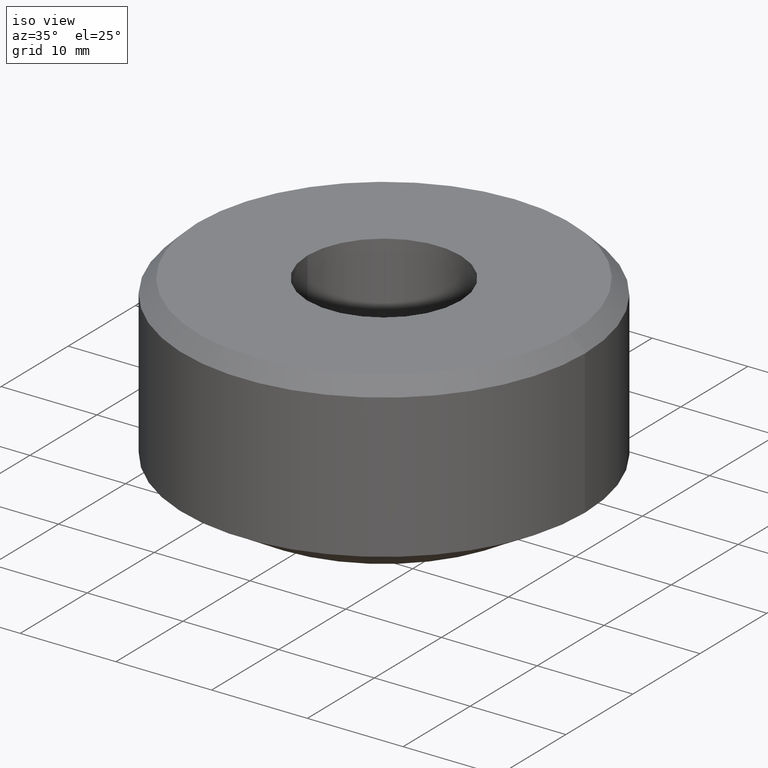
[diagram: clean part render]
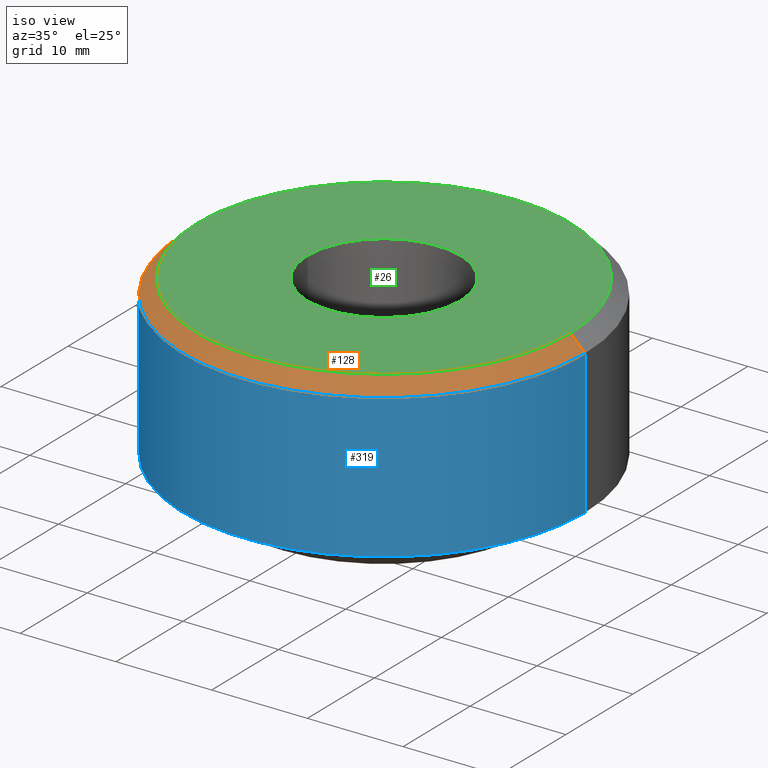
[diagram: same view with three faces highlighted in distinct colors, each labeled with its STEP entity id]
A machine part, iso view with three faces highlighted in distinct colors.
Their STEP definitions:

[orange] entity #128 — the highlighted conical surface has half-angle 45 deg.
#2 = VECTOR ( 'NONE', #183, 1000.000000000000100 ) ;
#14 = EDGE_CURVE ( 'NONE', #333, #338, #61, .T. ) ;
#15 = CARTESIAN_POINT ( 'NONE',  ( -19.50000000000000000, 0.0000000000000000000, 9.999999999999994700 ) ) ;
#16 = VERTEX_POINT ( 'NONE', #157 ) ;
#19 = CARTESIAN_POINT ( 'NONE',  ( 0.0000000000000000000, 0.0000000000000000000, 8.500000000000007100 ) ) ;
#49 = DIRECTION ( 'NONE',  ( 0.0000000000000000000, 0.0000000000000000000, -1.000000000000000000 ) ) ;
#53 = ORIENTED_EDGE ( 'NONE', *, *, #95, .T. ) ;
#61 = LINE ( 'NONE', #318, #2 ) ;
#65 = VERTEX_POINT ( 'NONE', #15 ) ;
#85 = ORIENTED_EDGE ( 'NONE', *, *, #14, .F. ) ;
#88 = CARTESIAN_POINT ( 'NONE',  ( 19.50000000000000000, 2.479909768273390300E-015, 9.999999999999994700 ) ) ;
#93 = CARTESIAN_POINT ( 'NONE',  ( 0.0000000000000000000, 0.0000000000000000000, 9.999999999999994700 ) ) ;
#95 = EDGE_CURVE ( 'NONE', #16, #338, #152, .T. ) ;
#108 = AXIS2_PLACEMENT_3D ( 'NONE', #162, #49, #187 ) ;
#125 = EDGE_LOOP ( 'NONE', ( #85, #139, #288, #53 ) ) ;
#128 = ADVANCED_FACE ( 'NONE', ( #249 ), #228, .T. ) ;
#134 = DIRECTION ( 'NONE',  ( 1.000000000000000000, 0.0000000000000000000, 0.0000000000000000000 ) ) ;
#139 = ORIENTED_EDGE ( 'NONE', *, *, #259, .F. ) ;
#149 = CARTESIAN_POINT ( 'NONE',  ( -21.00000000000000000, 0.0000000000000000000, 8.500000000000007100 ) ) ;
#152 = CIRCLE ( 'NONE', #274, 21.00000000000000000 ) ;
#157 = CARTESIAN_POINT ( 'NONE',  ( -21.00000000000000000, 0.0000000000000000000, 8.500000000000007100 ) ) ;
#162 = CARTESIAN_POINT ( 'NONE',  ( 0.0000000000000000000, 0.0000000000000000000, 8.500000000000007100 ) ) ;
#170 = LINE ( 'NONE', #149, #242 ) ;
#176 = EDGE_CURVE ( 'NONE', #65, #16, #170, .T. ) ;
#183 = DIRECTION ( 'NONE',  ( 0.7071067811865507900, 8.659560562354972300E-017, -0.7071067811865441300 ) ) ;
#187 = DIRECTION ( 'NONE',  ( -1.000000000000000000, 0.0000000000000000000, 0.0000000000000000000 ) ) ;
#203 = DIRECTION ( 'NONE',  ( -0.0000000000000000000, -0.0000000000000000000, 1.000000000000000000 ) ) ;
#214 = DIRECTION ( 'NONE',  ( -0.0000000000000000000, -0.0000000000000000000, 1.000000000000000000 ) ) ;
#228 = CONICAL_SURFACE ( 'NONE', #108, 21.00000000000000000, 0.7853981633974529400 ) ;
#242 = VECTOR ( 'NONE', #334, 1000.000000000000100 ) ;
#249 = FACE_OUTER_BOUND ( 'NONE', #125, .T. ) ;
#259 = EDGE_CURVE ( 'NONE', #65, #333, #322, .T. ) ;
#274 = AXIS2_PLACEMENT_3D ( 'NONE', #19, #214, #134 ) ;
#288 = ORIENTED_EDGE ( 'NONE', *, *, #176, .T. ) ;
#305 = CARTESIAN_POINT ( 'NONE',  ( 21.00000000000000000, 2.571758278209441700E-015, 8.500000000000007100 ) ) ;
#314 = AXIS2_PLACEMENT_3D ( 'NONE', #93, #203, #325 ) ;
#318 = CARTESIAN_POINT ( 'NONE',  ( 21.00000000000000000, 2.571758278209441700E-015, 8.500000000000007100 ) ) ;
#322 = CIRCLE ( 'NONE', #314, 19.50000000000000000 ) ;
#325 = DIRECTION ( 'NONE',  ( 1.000000000000000000, 0.0000000000000000000, 0.0000000000000000000 ) ) ;
#333 = VERTEX_POINT ( 'NONE', #88 ) ;
#334 = DIRECTION ( 'NONE',  ( -0.7071067811865507900, 0.0000000000000000000, -0.7071067811865441300 ) ) ;
#338 = VERTEX_POINT ( 'NONE', #305 ) ;

[blue] entity #319 — the highlighted cylindrical surface (partial cylindrical patch) has radius 21 mm, axis along (-0, -0, 1).
#16 = VERTEX_POINT ( 'NONE', #157 ) ;
#19 = CARTESIAN_POINT ( 'NONE',  ( 0.0000000000000000000, 0.0000000000000000000, 8.500000000000007100 ) ) ;
#34 = DIRECTION ( 'NONE',  ( -0.0000000000000000000, -0.0000000000000000000, 1.000000000000000000 ) ) ;
#38 = EDGE_CURVE ( 'NONE', #100, #16, #253, .T. ) ;
#57 = VECTOR ( 'NONE', #295, 1000.000000000000000 ) ;
#66 = ORIENTED_EDGE ( 'NONE', *, *, #95, .F. ) ;
#95 = EDGE_CURVE ( 'NONE', #16, #338, #152, .T. ) ;
#100 = VERTEX_POINT ( 'NONE', #216 ) ;
#114 = CARTESIAN_POINT ( 'NONE',  ( 21.00000000000000000, 0.0000000000000000000, -6.535898384862265200 ) ) ;
#117 = DIRECTION ( 'NONE',  ( 1.000000000000000000, 0.0000000000000000000, 0.0000000000000000000 ) ) ;
#134 = DIRECTION ( 'NONE',  ( 1.000000000000000000, 0.0000000000000000000, 0.0000000000000000000 ) ) ;
#137 = CARTESIAN_POINT ( 'NONE',  ( 0.0000000000000000000, 0.0000000000000000000, 43.26054273766887100 ) ) ;
#138 = CIRCLE ( 'NONE', #263, 21.00000000000000000 ) ;
#150 = EDGE_CURVE ( 'NONE', #100, #331, #138, .T. ) ;
#152 = CIRCLE ( 'NONE', #274, 21.00000000000000000 ) ;
#156 = CARTESIAN_POINT ( 'NONE',  ( -21.00000000000000000, 2.571758278209441700E-015, 43.26054273766887100 ) ) ;
#157 = CARTESIAN_POINT ( 'NONE',  ( -21.00000000000000000, 0.0000000000000000000, 8.500000000000007100 ) ) ;
#173 = DIRECTION ( 'NONE',  ( 1.000000000000000000, 0.0000000000000000000, 0.0000000000000000000 ) ) ;
#180 = AXIS2_PLACEMENT_3D ( 'NONE', #137, #309, #117 ) ;
#210 = EDGE_CURVE ( 'NONE', #331, #338, #291, .T. ) ;
#214 = DIRECTION ( 'NONE',  ( -0.0000000000000000000, -0.0000000000000000000, 1.000000000000000000 ) ) ;
#216 = CARTESIAN_POINT ( 'NONE',  ( -21.00000000000000000, 2.571758278209441700E-015, -6.535898384862265200 ) ) ;
#220 = CYLINDRICAL_SURFACE ( 'NONE', #180, 21.00000000000000000 ) ;
#229 = ORIENTED_EDGE ( 'NONE', *, *, #38, .F. ) ;
#231 = FACE_OUTER_BOUND ( 'NONE', #261, .T. ) ;
#245 = VECTOR ( 'NONE', #34, 1000.000000000000000 ) ;
#253 = LINE ( 'NONE', #156, #57 ) ;
#261 = EDGE_LOOP ( 'NONE', ( #229, #267, #328, #66 ) ) ;
#262 = CARTESIAN_POINT ( 'NONE',  ( 0.0000000000000000000, 0.0000000000000000000, -6.535898384862265200 ) ) ;
#263 = AXIS2_PLACEMENT_3D ( 'NONE', #262, #312, #173 ) ;
#267 = ORIENTED_EDGE ( 'NONE', *, *, #150, .T. ) ;
#274 = AXIS2_PLACEMENT_3D ( 'NONE', #19, #214, #134 ) ;
#287 = CARTESIAN_POINT ( 'NONE',  ( 21.00000000000000000, 0.0000000000000000000, 43.26054273766887100 ) ) ;
#291 = LINE ( 'NONE', #287, #245 ) ;
#295 = DIRECTION ( 'NONE',  ( -0.0000000000000000000, -0.0000000000000000000, 1.000000000000000000 ) ) ;
#305 = CARTESIAN_POINT ( 'NONE',  ( 21.00000000000000000, 2.571758278209441700E-015, 8.500000000000007100 ) ) ;
#309 = DIRECTION ( 'NONE',  ( -0.0000000000000000000, -0.0000000000000000000, 1.000000000000000000 ) ) ;
#312 = DIRECTION ( 'NONE',  ( -0.0000000000000000000, -0.0000000000000000000, 1.000000000000000000 ) ) ;
#319 = ADVANCED_FACE ( 'NONE', ( #231 ), #220, .T. ) ;
#328 = ORIENTED_EDGE ( 'NONE', *, *, #210, .T. ) ;
#331 = VERTEX_POINT ( 'NONE', #114 ) ;
#338 = VERTEX_POINT ( 'NONE', #305 ) ;

[green] entity #26 — the highlighted planar face has unit normal (0, 0, -1).
#4 = ORIENTED_EDGE ( 'NONE', *, *, #189, .T. ) ;
#15 = CARTESIAN_POINT ( 'NONE',  ( -19.50000000000000000, 0.0000000000000000000, 9.999999999999994700 ) ) ;
#26 = ADVANCED_FACE ( 'NONE', ( #52, #124 ), #260, .F. ) ;
#36 = EDGE_LOOP ( 'NONE', ( #80, #209 ) ) ;
#48 = DIRECTION ( 'NONE',  ( -0.0000000000000000000, -0.0000000000000000000, 1.000000000000000000 ) ) ;
#50 = DIRECTION ( 'NONE',  ( -0.0000000000000000000, -0.0000000000000000000, 1.000000000000000000 ) ) ;
#52 = FACE_BOUND ( 'NONE', #36, .T. ) ;
#63 = DIRECTION ( 'NONE',  ( 1.000000000000000000, 0.0000000000000000000, 0.0000000000000000000 ) ) ;
#65 = VERTEX_POINT ( 'NONE', #15 ) ;
#70 = CARTESIAN_POINT ( 'NONE',  ( 0.0000000000000000000, 0.0000000000000000000, 10.00000000000000200 ) ) ;
#75 = VERTEX_POINT ( 'NONE', #182 ) ;
#76 = DIRECTION ( 'NONE',  ( 1.000000000000000000, 0.0000000000000000000, 0.0000000000000000000 ) ) ;
#80 = ORIENTED_EDGE ( 'NONE', *, *, #143, .F. ) ;
#83 = AXIS2_PLACEMENT_3D ( 'NONE', #160, #50, #76 ) ;
#88 = CARTESIAN_POINT ( 'NONE',  ( 19.50000000000000000, 2.479909768273390300E-015, 9.999999999999994700 ) ) ;
#91 = EDGE_CURVE ( 'NONE', #75, #151, #103, .T. ) ;
#93 = CARTESIAN_POINT ( 'NONE',  ( 0.0000000000000000000, 0.0000000000000000000, 9.999999999999994700 ) ) ;
#103 = CIRCLE ( 'NONE', #310, 8.000000000000000000 ) ;
#124 = FACE_OUTER_BOUND ( 'NONE', #193, .T. ) ;
#127 = DIRECTION ( 'NONE',  ( -1.000000000000000000, 0.0000000000000000000, -0.0000000000000000000 ) ) ;
#133 = CIRCLE ( 'NONE', #83, 8.000000000000000000 ) ;
#143 = EDGE_CURVE ( 'NONE', #151, #75, #133, .T. ) ;
#151 = VERTEX_POINT ( 'NONE', #163 ) ;
#160 = CARTESIAN_POINT ( 'NONE',  ( 0.0000000000000000000, 0.0000000000000000000, 10.00000000000000200 ) ) ;
#163 = CARTESIAN_POINT ( 'NONE',  ( 8.000000000000000000, 0.0000000000000000000, 10.00000000000000200 ) ) ;
#166 = ORIENTED_EDGE ( 'NONE', *, *, #259, .T. ) ;
#182 = CARTESIAN_POINT ( 'NONE',  ( -8.000000000000000000, 9.797174393178825700E-016, 10.00000000000000200 ) ) ;
#189 = EDGE_CURVE ( 'NONE', #333, #65, #281, .T. ) ;
#193 = EDGE_LOOP ( 'NONE', ( #166, #4 ) ) ;
#200 = DIRECTION ( 'NONE',  ( 0.0000000000000000000, 0.0000000000000000000, -1.000000000000000000 ) ) ;
#201 = CARTESIAN_POINT ( 'NONE',  ( 0.0000000000000000000, 0.0000000000000000000, 9.999999999999994700 ) ) ;
#203 = DIRECTION ( 'NONE',  ( -0.0000000000000000000, -0.0000000000000000000, 1.000000000000000000 ) ) ;
#209 = ORIENTED_EDGE ( 'NONE', *, *, #91, .F. ) ;
#226 = AXIS2_PLACEMENT_3D ( 'NONE', #201, #235, #63 ) ;
#235 = DIRECTION ( 'NONE',  ( -0.0000000000000000000, -0.0000000000000000000, 1.000000000000000000 ) ) ;
#240 = AXIS2_PLACEMENT_3D ( 'NONE', #313, #200, #127 ) ;
#244 = DIRECTION ( 'NONE',  ( 1.000000000000000000, 0.0000000000000000000, 0.0000000000000000000 ) ) ;
#259 = EDGE_CURVE ( 'NONE', #65, #333, #322, .T. ) ;
#260 = PLANE ( 'NONE',  #240 ) ;
#281 = CIRCLE ( 'NONE', #226, 19.50000000000000000 ) ;
#310 = AXIS2_PLACEMENT_3D ( 'NONE', #70, #48, #244 ) ;
#313 = CARTESIAN_POINT ( 'NONE',  ( 0.0000000000000000000, 8.000000000000000000, 9.999999999999998200 ) ) ;
#314 = AXIS2_PLACEMENT_3D ( 'NONE', #93, #203, #325 ) ;
#322 = CIRCLE ( 'NONE', #314, 19.50000000000000000 ) ;
#325 = DIRECTION ( 'NONE',  ( 1.000000000000000000, 0.0000000000000000000, 0.0000000000000000000 ) ) ;
#333 = VERTEX_POINT ( 'NONE', #88 ) ;